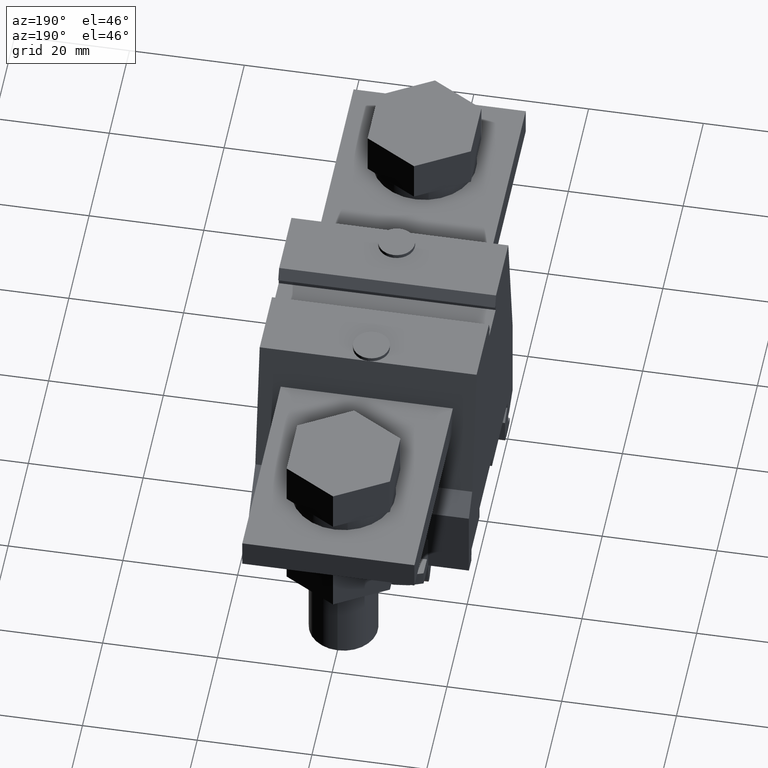
[diagram: clean part render]
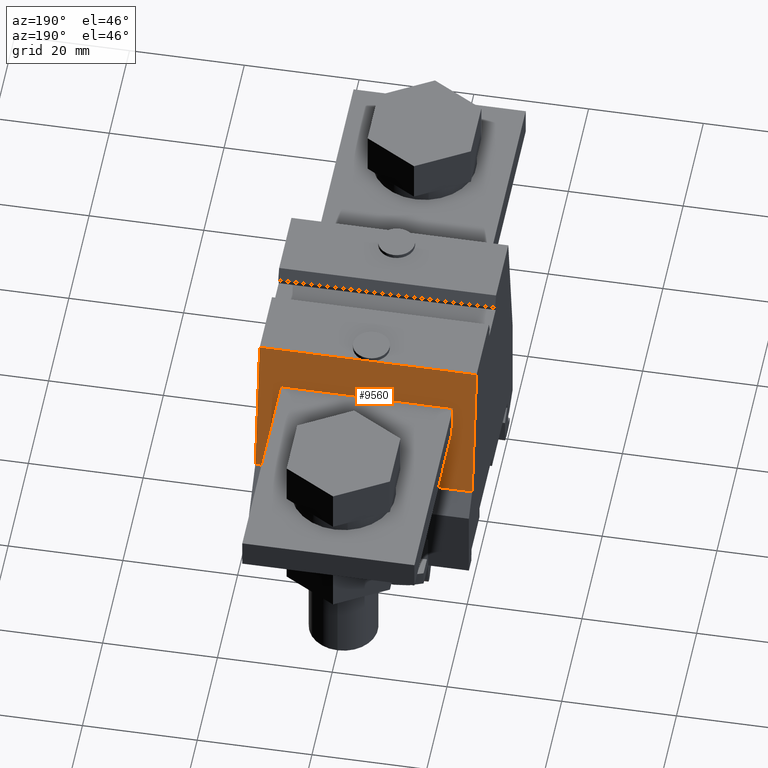
[diagram: same view with one face highlighted and labeled with its STEP entity id]
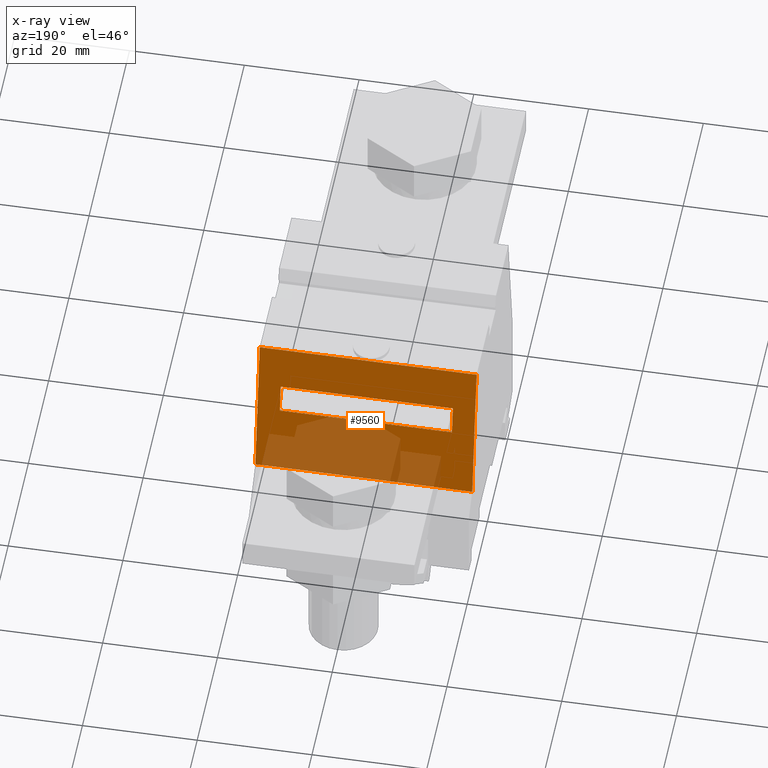
[diagram: x-ray of the same camera — body ghosted, the highlighted face saturated]
A machine part, auxiliary view. The second image highlights one B-rep face of the part: STEP entity #9560.
The next image is the same camera in x-ray: the body ghosted, the highlighted face saturated — about 36% of this face is hidden behind the body in this view.
In plain terms, the highlighted planar face has unit normal (0, 0.9848, 0.1736).
Its self-contained STEP definition (entity closure, byte-faithful):
#840=CARTESIAN_POINT('',(-114.988289177837,413.574377855495,2.6));
#850=VERTEX_POINT('',#840);
#880=CARTESIAN_POINT('',(-187.912610523477,0.,2.6));
#890=DIRECTION('',(0.173648177666929,0.984807753012208,0.));
#900=VECTOR('',#890,1.);
#910=LINE('',#880,#900);
#920=CARTESIAN_POINT('',(-119.308300205194,389.074377855494,2.6));
#930=VERTEX_POINT('',#920);
#940=EDGE_CURVE('',#930,#850,#910,.T.);
#4510=CARTESIAN_POINT('',(-119.308300205194,389.074377855494,40.4));
#4520=VERTEX_POINT('',#4510);
#4550=CARTESIAN_POINT('',(-187.912610523477,0.,40.4));
#4560=DIRECTION('',(0.173648177666929,0.984807753012208,0.));
#4570=VECTOR('',#4560,1.);
#4580=LINE('',#4550,#4570);
#4590=CARTESIAN_POINT('',(-114.988289177837,413.574377855495,40.4));
#4600=VERTEX_POINT('',#4590);
#4610=EDGE_CURVE('',#4520,#4600,#4580,.T.);
#9010=CARTESIAN_POINT('',(-117.227641832834,400.874377855495,
1.30000000000001));
#9020=DIRECTION('',(-0.984807753012208,0.173648177666931,0.));
#9030=DIRECTION('',(0.173648177666931,0.984807753012208,0.));
#9040=AXIS2_PLACEMENT_3D('',#9010,#9020,#9030);
#9050=PLANE('',#9040);
#9060=CARTESIAN_POINT('',(-116.337190546908,405.924378044622,0.));
#9070=DIRECTION('',(0.,0.,1.));
#9080=VECTOR('',#9070,1.);
#9090=LINE('',#9060,#9080);
#9100=CARTESIAN_POINT('',(-116.337190546908,405.924378044622,6.5));
#9110=VERTEX_POINT('',#9100);
#9120=CARTESIAN_POINT('',(-116.337190546908,405.924378044622,36.5));
#9130=VERTEX_POINT('',#9120);
#9140=EDGE_CURVE('',#9110,#9130,#9090,.T.);
#9150=ORIENTED_EDGE('',*,*,#9140,.T.);
#9160=CARTESIAN_POINT('',(-187.912610523477,0.,6.5));
#9170=DIRECTION('',(-0.173648177666929,-0.984807753012208,0.));
#9180=VECTOR('',#9170,1.);
#9190=LINE('',#9160,#9180);
#9200=CARTESIAN_POINT('',(-117.218825450451,400.924378044622,6.5));
#9210=VERTEX_POINT('',#9200);
#9220=EDGE_CURVE('',#9110,#9210,#9190,.T.);
#9230=ORIENTED_EDGE('',*,*,#9220,.F.);
#9240=CARTESIAN_POINT('',(-117.218825450451,400.924378044622,0.));
#9250=DIRECTION('',(0.,0.,1.));
#9260=VECTOR('',#9250,1.);
#9270=LINE('',#9240,#9260);
#9280=CARTESIAN_POINT('',(-117.218825450451,400.924378044622,36.5));
#9290=VERTEX_POINT('',#9280);
#9300=EDGE_CURVE('',#9210,#9290,#9270,.T.);
#9310=ORIENTED_EDGE('',*,*,#9300,.F.);
#9320=CARTESIAN_POINT('',(-187.912610523477,0.,36.5));
#9330=DIRECTION('',(0.173648177666929,0.984807753012208,0.));
#9340=VECTOR('',#9330,1.);
#9350=LINE('',#9320,#9340);
#9360=EDGE_CURVE('',#9290,#9130,#9350,.T.);
#9370=ORIENTED_EDGE('',*,*,#9360,.F.);
#9380=EDGE_LOOP('',(#9370,#9310,#9230,#9150));
#9390=FACE_BOUND('',#9380,.T.);
#9400=CARTESIAN_POINT('',(-119.308300205194,389.074377855494,0.));
#9410=DIRECTION('',(0.,0.,1.));
#9420=VECTOR('',#9410,1.);
#9430=LINE('',#9400,#9420);
#9440=EDGE_CURVE('',#930,#4520,#9430,.T.);
#9450=ORIENTED_EDGE('',*,*,#9440,.T.);
#9460=ORIENTED_EDGE('',*,*,#940,.F.);
#9470=CARTESIAN_POINT('',(-114.988289177837,413.574377855495,0.));
#9480=DIRECTION('',(0.,0.,-1.));
#9490=VECTOR('',#9480,1.);
#9500=LINE('',#9470,#9490);
#9510=EDGE_CURVE('',#4600,#850,#9500,.T.);
#9520=ORIENTED_EDGE('',*,*,#9510,.T.);
#9530=ORIENTED_EDGE('',*,*,#4610,.T.);
#9540=EDGE_LOOP('',(#9530,#9520,#9460,#9450));
#9550=FACE_OUTER_BOUND('',#9540,.T.);
#9560=ADVANCED_FACE('',(#9390,#9550),#9050,.T.);